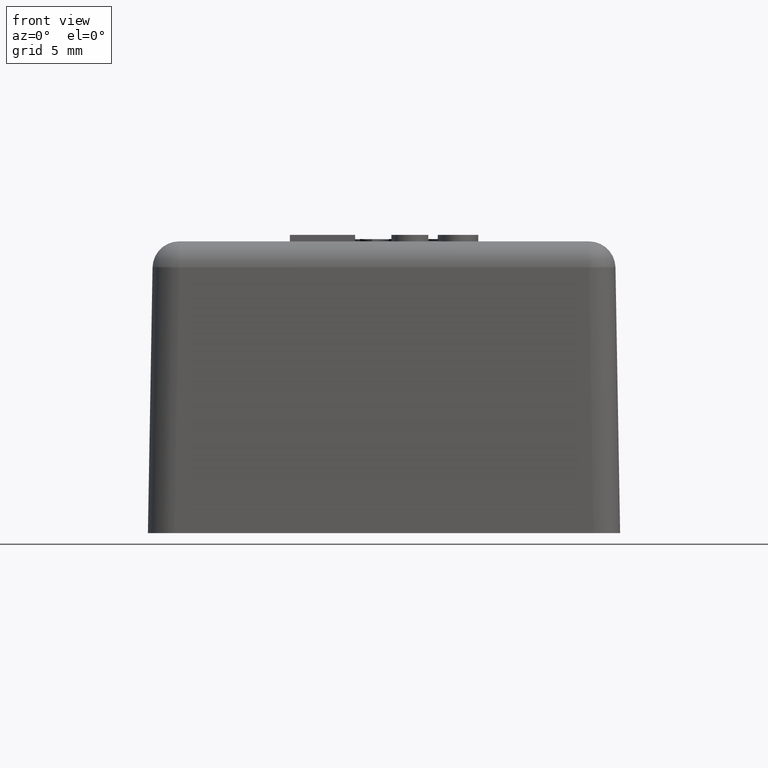
[diagram: clean part render]
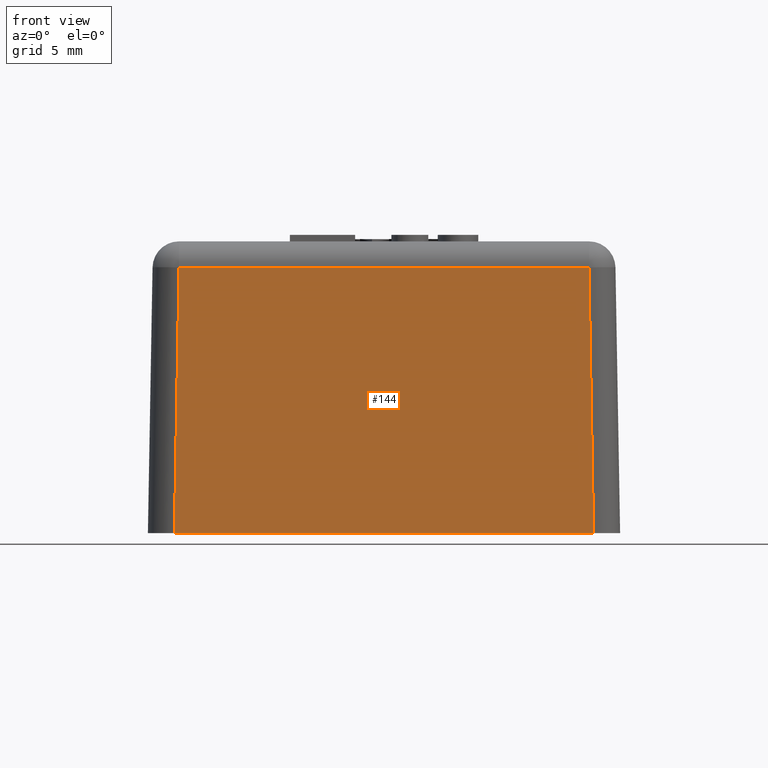
[diagram: same view with one face highlighted and labeled with its STEP entity id]
A machine part, front view. The second image highlights one B-rep face of the part: STEP entity #144.
In plain terms, the highlighted planar face has unit normal (0, -0.9998, 0.0175).
Its self-contained STEP definition (entity closure, byte-faithful):
#144 = ADVANCED_FACE( '', ( #303 ), #304, .T. );
#303 = FACE_OUTER_BOUND( '', #477, .T. );
#304 = PLANE( '', #478 );
#477 = EDGE_LOOP( '', ( #1058, #1059, #1060, #1061 ) );
#478 = AXIS2_PLACEMENT_3D( '', #1062, #1063, #1064 );
#1058 = ORIENTED_EDGE( '', *, *, #1324, .T. );
#1059 = ORIENTED_EDGE( '', *, *, #1319, .T. );
#1060 = ORIENTED_EDGE( '', *, *, #1321, .T. );
#1061 = ORIENTED_EDGE( '', *, *, #1345, .T. );
#1062 = CARTESIAN_POINT( '', ( -18.0314000000000, -18.0314000000000, 0.000000000000000 ) );
#1063 = DIRECTION( '', ( 0.000000000000000, -0.999847695156391, 0.0174524064372835 ) );
#1064 = DIRECTION( '', ( 0.000000000000000, -0.0174524064372835, -0.999847695156391 ) );
#1319 = EDGE_CURVE( '', #1596, #1600, #1602, .F. );
#1321 = EDGE_CURVE( '', #1600, #1604, #1605, .F. );
#1324 = EDGE_CURVE( '', #1609, #1596, #1610, .T. );
#1345 = EDGE_CURVE( '', #1604, #1609, #1642, .F. );
#1596 = VERTEX_POINT( '', #2116 );
#1600 = VERTEX_POINT( '', #2120 );
#1602 = LINE( '', #2122, #2123 );
#1604 = VERTEX_POINT( '', #2125 );
#1605 = LINE( '', #2126, #2127 );
#1609 = VERTEX_POINT( '', #2132 );
#1610 = LINE( '', #2133, #2134 );
#1642 = LINE( '', #2183, #2184 );
#2116 = CARTESIAN_POINT( '', ( 15.6514517679373, -17.6771431983242, 20.2953585754419 ) );
#2120 = CARTESIAN_POINT( '', ( -15.6514517679374, -17.6771431983242, 20.2953585754419 ) );
#2122 = CARTESIAN_POINT( '', ( -15.6167049926229, -17.6771431983242, 20.2953585754419 ) );
#2123 = VECTOR( '', #2429, 1000.00000000000 );
#2125 = CARTESIAN_POINT( '', ( -16.0057085696132, -18.0314000000000, 0.000000000000000 ) );
#2126 = CARTESIAN_POINT( '', ( -16.0063253799846, -18.0320168103714, -0.0353370425117735 ) );
#2127 = VECTOR( '', #2433, 1000.00000000000 );
#2132 = CARTESIAN_POINT( '', ( 16.0057085696132, -18.0314000000000, 0.000000000000000 ) );
#2133 = CARTESIAN_POINT( '', ( 15.9953444829296, -18.0210359133164, 0.593758128439422 ) );
#2134 = VECTOR( '', #2438, 1000.00000000000 );
#2183 = CARTESIAN_POINT( '', ( -18.0314000000000, -18.0314000000000, 0.000000000000000 ) );
#2184 = VECTOR( '', #2465, 1000.00000000000 );
#2429 = DIRECTION( '', ( 1.00000000000000, 0.000000000000000, 0.000000000000000 ) );
#2433 = DIRECTION( '', ( 0.0174497491606827, 0.0174497491606827, 0.999695459881887 ) );
#2438 = DIRECTION( '', ( -0.0174497491606827, 0.0174497491606827, 0.999695459881887 ) );
#2465 = DIRECTION( '', ( -1.00000000000000, 0.000000000000000, 0.000000000000000 ) );